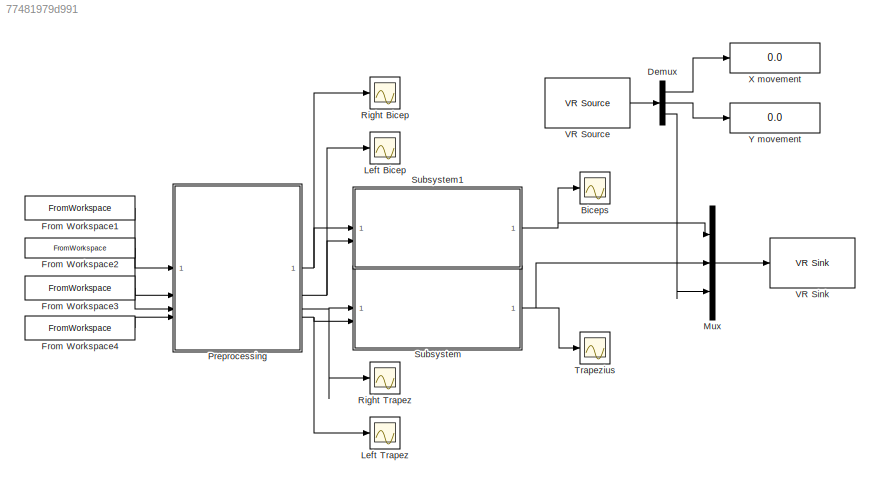
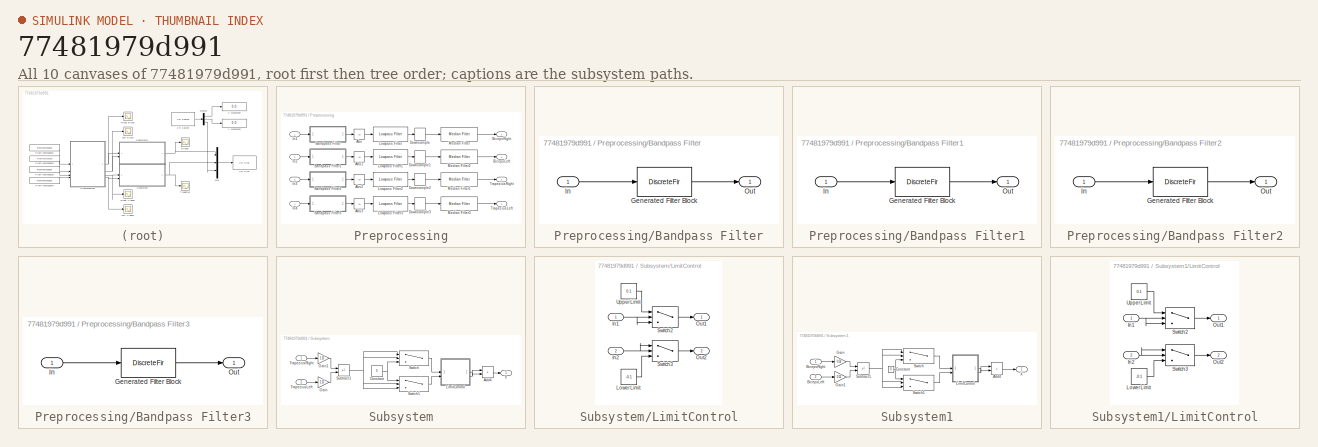
[diagram: thumbnail index - all 10 canvases of the model, root first then tree order]
MODEL slx_77481979d991
KIND model
CONFIG AbsTol = auto
CONFIG EnableMultiTasking = off
CONFIG FixedStep = auto
CONFIG MaxStep = auto
CONFIG MinStep = auto
CONFIG RelTol = 1e-3
CONFIG SampleTimeConstraint = Unconstrained
CONFIG SolverName = VariableStepAuto
CONFIG StartTime = 0.0
CONFIG StopTime = 30.0
BLOCK [Scope] Biceps
  Floating = off
  NumInputPorts = 1
  ScopeSpecificationString = Simulink.scopes.TimeScopeBlockCfg('CurrentConfiguration', extmgr.ConfigurationSet(extmgr.Configuration('Core','General UI',true),extmgr.Configuration('Core','Source UI',true),extmgr.Configuration('Sources','WiredSimulink',true,'DataLoggingVariableName','ScopeData1'),extmgr.Configuration('Visuals','Time Domain',true,'SerializedDisplays',{struct('MinYLimReal','-0.12694','MaxYLimReal','0.12358','YLab...<+1450ch>
BLOCK [Demux] Demux
  Outputs = 3
BLOCK [FromWorkspace] From Workspace1
  OutDataTypeStr = double
  SampleTime = 0.001
  VariableName = [ES2_emg.time, ES2_emg.signals(:,1)]
BLOCK [FromWorkspace] From Workspace2
  OutDataTypeStr = double
  SampleTime = 0.001
  VariableName = [ES2_emg.time, ES2_emg.signals(:,2)]
BLOCK [FromWorkspace] From Workspace3
  OutDataTypeStr = double
  SampleTime = 0.001
  VariableName = [ES2_emg.time, ES2_emg.signals(:,3)]
BLOCK [FromWorkspace] From Workspace4
  OutDataTypeStr = double
  SampleTime = 0.001
  VariableName = [ES2_emg.time, ES2_emg.signals(:,4)]
BLOCK [Scope] Left Bicep
  Floating = off
  NumInputPorts = 1
  ScopeSpecificationString = Simulink.scopes.TimeScopeBlockCfg('CurrentConfiguration', extmgr.ConfigurationSet(extmgr.Configuration('Core','General UI',true),extmgr.Configuration('Core','Source UI',true),extmgr.Configuration('Sources','WiredSimulink',true,'DataLoggingVariableName','ScopeData2'),extmgr.Configuration('Visuals','Time Domain',true),extmgr.Configuration('Tools','Plot Navigation',true),extmgr.Configuration('Tools',...<+40ch>
BLOCK [Scope] Left Trapez
  Floating = off
  NumInputPorts = 1
  ScopeSpecificationString = Simulink.scopes.TimeScopeBlockCfg('CurrentConfiguration', extmgr.ConfigurationSet(extmgr.Configuration('Core','General UI',true),extmgr.Configuration('Core','Source UI',true),extmgr.Configuration('Sources','WiredSimulink',true,'DataLoggingVariableName','ScopeData4'),extmgr.Configuration('Visuals','Time Domain',true),extmgr.Configuration('Tools','Plot Navigation',true),extmgr.Configuration('Tools',...<+40ch>
BLOCK [Mux] Mux
  DisplayOption = bar
  Inputs = 3
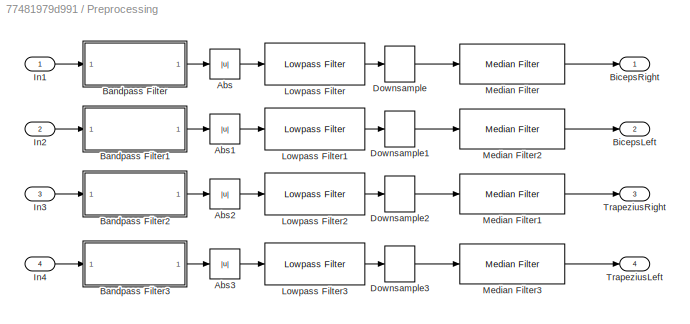
BLOCK [SubSystem] Preprocessing
BLOCK [Abs] Preprocessing/Abs
  SaturateOnIntegerOverflow = off
BLOCK [Abs] Preprocessing/Abs1
  SaturateOnIntegerOverflow = off
BLOCK [Abs] Preprocessing/Abs2
  SaturateOnIntegerOverflow = off
BLOCK [Abs] Preprocessing/Abs3
  SaturateOnIntegerOverflow = off
BLOCK [SubSystem] Preprocessing/Bandpass Filter
  CopyFcn = fdesignblkfcn(gcbh, {'CopyFcn'});
  DialogController = fdesignblkfcn
  InitFcn = fdesignblkfcn(gcbh, {'InitFcn'});
  UserDataPersistent = on
BLOCK [DiscreteFir] Preprocessing/Bandpass Filter/Generated Filter Block
  Coefficients = [8.09984662039171167e-19 6.39138873735445952e-05 -0.000529985360713195602 0.000163049509978640958 -0.00106873656065133355 0.000138454107623771778 -0.00150740219393306354 -0.000146171169312381939 -0.00164491285071874664 -0.000803831165663842096 -0.00127002939103642264 -0.00179475969145176406 -0.000313202715390952153 -0.00280047053638836797 0.00102378750565708626 -0.00320898606072516192 0.0022684712...<+1946ch>  <repeated x4 — deduplicated; at blocks: Generated Filter Block>
  InputPortMap = u0
  InputProcessing = Columns as channels (frame based)
  OutputPortMap = o0
  Tag = BlockMethodSubSystem
BLOCK [Inport] Preprocessing/Bandpass Filter/In
BLOCK [Outport] Preprocessing/Bandpass Filter/Out
  VectorParamsAs1DForOutWhenUnconnected = off
BLOCK [SubSystem] Preprocessing/Bandpass Filter1
  CopyFcn = fdesignblkfcn(gcbh, {'CopyFcn'});
  DialogController = fdesignblkfcn
  InitFcn = fdesignblkfcn(gcbh, {'InitFcn'});
  UserDataPersistent = on
BLOCK [DiscreteFir] Preprocessing/Bandpass Filter1/Generated Filter Block
  InputPortMap = u0
  InputProcessing = Columns as channels (frame based)
  OutputPortMap = o0
  Tag = BlockMethodSubSystem
BLOCK [Inport] Preprocessing/Bandpass Filter1/In
BLOCK [Outport] Preprocessing/Bandpass Filter1/Out
  VectorParamsAs1DForOutWhenUnconnected = off
BLOCK [SubSystem] Preprocessing/Bandpass Filter2
  CopyFcn = fdesignblkfcn(gcbh, {'CopyFcn'});
  DialogController = fdesignblkfcn
  InitFcn = fdesignblkfcn(gcbh, {'InitFcn'});
  UserDataPersistent = on
BLOCK [DiscreteFir] Preprocessing/Bandpass Filter2/Generated Filter Block
  InputPortMap = u0
  InputProcessing = Columns as channels (frame based)
  OutputPortMap = o0
  Tag = BlockMethodSubSystem
BLOCK [Inport] Preprocessing/Bandpass Filter2/In
BLOCK [Outport] Preprocessing/Bandpass Filter2/Out
  VectorParamsAs1DForOutWhenUnconnected = off
BLOCK [SubSystem] Preprocessing/Bandpass Filter3
  CopyFcn = fdesignblkfcn(gcbh, {'CopyFcn'});
  DialogController = fdesignblkfcn
  InitFcn = fdesignblkfcn(gcbh, {'InitFcn'});
  UserDataPersistent = on
BLOCK [DiscreteFir] Preprocessing/Bandpass Filter3/Generated Filter Block
  InputPortMap = u0
  InputProcessing = Columns as channels (frame based)
  OutputPortMap = o0
  Tag = BlockMethodSubSystem
BLOCK [Inport] Preprocessing/Bandpass Filter3/In
BLOCK [Outport] Preprocessing/Bandpass Filter3/Out
  VectorParamsAs1DForOutWhenUnconnected = off
BLOCK [Outport] Preprocessing/BicepsLeft
  Port = 2
BLOCK [Outport] Preprocessing/BicepsRight
BLOCK [DownSample] Preprocessing/Downsample
  InputProcessing = Elements as channels (sample based)
  N = 4
  RateOptions = Allow multirate processing
BLOCK [DownSample] Preprocessing/Downsample1
  InputProcessing = Elements as channels (sample based)
  N = 4
  RateOptions = Allow multirate processing
BLOCK [DownSample] Preprocessing/Downsample2
  InputProcessing = Elements as channels (sample based)
  N = 4
  RateOptions = Allow multirate processing
BLOCK [DownSample] Preprocessing/Downsample3
  InputProcessing = Elements as channels (sample based)
  N = 4
  RateOptions = Allow multirate processing
BLOCK [Inport] Preprocessing/In1
BLOCK [Inport] Preprocessing/In2
  Port = 2
BLOCK [Inport] Preprocessing/In3
  Port = 3
BLOCK [Inport] Preprocessing/In4
  Port = 4
BLOCK [Reference] Preprocessing/Lowpass Filter  REF=dspfdesign/Lowpass Filter
  SourceBlock = dspfdesign/Lowpass Filter
  SourceType = dsp.simulink.LowpassFilter
BLOCK [Reference] Preprocessing/Lowpass Filter1  REF=dspfdesign/Lowpass Filter
  SourceBlock = dspfdesign/Lowpass Filter
  SourceType = dsp.simulink.LowpassFilter
BLOCK [Reference] Preprocessing/Lowpass Filter2  REF=dspfdesign/Lowpass Filter
  SourceBlock = dspfdesign/Lowpass Filter
  SourceType = dsp.simulink.LowpassFilter
BLOCK [Reference] Preprocessing/Lowpass Filter3  REF=dspfdesign/Lowpass Filter
  SourceBlock = dspfdesign/Lowpass Filter
  SourceType = dsp.simulink.LowpassFilter
BLOCK [Reference] Preprocessing/Median Filter  REF=dspstat3/Median
Filter
  LibrarySourceBlock = dspfdesign/Median\nFilter
  SourceBlock = dspstat3/Median\nFilter
  SourceType = dsp.simulink.MedianFilter
BLOCK [Reference] Preprocessing/Median Filter1  REF=dspstat3/Median
Filter
  LibrarySourceBlock = dspfdesign/Median\nFilter
  SourceBlock = dspstat3/Median\nFilter
  SourceType = dsp.simulink.MedianFilter
BLOCK [Reference] Preprocessing/Median Filter2  REF=dspstat3/Median
Filter
  LibrarySourceBlock = dspfdesign/Median\nFilter
  SourceBlock = dspstat3/Median\nFilter
  SourceType = dsp.simulink.MedianFilter
BLOCK [Reference] Preprocessing/Median Filter3  REF=dspstat3/Median
Filter
  LibrarySourceBlock = dspfdesign/Median\nFilter
  SourceBlock = dspstat3/Median\nFilter
  SourceType = dsp.simulink.MedianFilter
BLOCK [Outport] Preprocessing/TrapeziusLeft
  Port = 4
BLOCK [Outport] Preprocessing/TrapeziusRight
  Port = 3
BLOCK [Scope] Right Bicep
  Floating = off
  NumInputPorts = 1
  ScopeSpecificationString = Simulink.scopes.TimeScopeBlockCfg('CurrentConfiguration', extmgr.ConfigurationSet(extmgr.Configuration('Core','General UI',true),extmgr.Configuration('Core','Source UI',true),extmgr.Configuration('Sources','WiredSimulink',true,'DataLoggingVariableName','ScopeData1'),extmgr.Configuration('Visuals','Time Domain',true),extmgr.Configuration('Tools','Plot Navigation',true),extmgr.Configuration('Tools',...<+40ch>
BLOCK [Scope] Right Trapez
  Floating = off
  NumInputPorts = 1
  ScopeSpecificationString = Simulink.scopes.TimeScopeBlockCfg('CurrentConfiguration', extmgr.ConfigurationSet(extmgr.Configuration('Core','General UI',true),extmgr.Configuration('Core','Source UI',true),extmgr.Configuration('Sources','WiredSimulink',true,'DataLoggingVariableName','ScopeData3'),extmgr.Configuration('Visuals','Time Domain',true,'SerializedDisplays',{struct('MinYLimReal','0.00954','MaxYLimReal','0.1271','YLabel...<+1387ch>
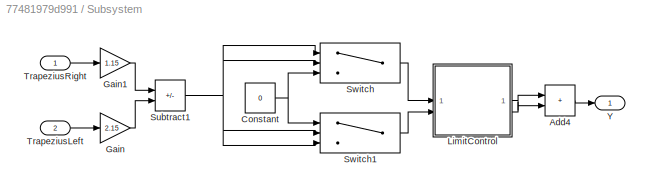
BLOCK [SubSystem] Subsystem
BLOCK [Sum] Subsystem/Add4
  IconShape = rectangular
BLOCK [Constant] Subsystem/Constant
  Value = 0
BLOCK [Gain] Subsystem/Gain
  Gain = 2.15
BLOCK [Gain] Subsystem/Gain1
  Gain = 1.15
BLOCK [SubSystem] Subsystem/LimitControl
BLOCK [Inport] Subsystem/LimitControl/In1
BLOCK [Inport] Subsystem/LimitControl/In2
  Port = 2
BLOCK [Constant] Subsystem/LimitControl/LowerLimit
  Value = -0.1
BLOCK [Outport] Subsystem/LimitControl/Out1
BLOCK [Outport] Subsystem/LimitControl/Out2
  Port = 2
BLOCK [Switch] Subsystem/LimitControl/Switch2
  Criteria = u2 > Threshold
  InputSameDT = off
  SaturateOnIntegerOverflow = off
  Threshold = 0.074
BLOCK [Switch] Subsystem/LimitControl/Switch3
  Criteria = u2 > Threshold
  InputSameDT = off
  SaturateOnIntegerOverflow = off
  Threshold = -0.1
BLOCK [Constant] Subsystem/LimitControl/UpperLimit
  Value = 0.1
BLOCK [Sum] Subsystem/Subtract1
  IconShape = rectangular
  Inputs = +-
BLOCK [Switch] Subsystem/Switch
  Criteria = u2 > Threshold
  InputSameDT = off
  SaturateOnIntegerOverflow = off
  Threshold = 0.05
BLOCK [Switch] Subsystem/Switch1
  Criteria = u2 > Threshold
  InputSameDT = off
  SaturateOnIntegerOverflow = off
  Threshold = -0.015
BLOCK [Inport] Subsystem/TrapeziusLeft
  Port = 2
BLOCK [Inport] Subsystem/TrapeziusRight
BLOCK [Outport] Subsystem/Y
BLOCK [SubSystem] Subsystem1
BLOCK [Sum] Subsystem1/Add4
  IconShape = rectangular
BLOCK [Inport] Subsystem1/BicepsLeft
  Port = 2
BLOCK [Inport] Subsystem1/BicepsRight
BLOCK [Constant] Subsystem1/Constant
  Value = 0
BLOCK [Gain] Subsystem1/Gain
  Gain = 0.59
BLOCK [Gain] Subsystem1/Gain1
  Gain = 0.52
BLOCK [SubSystem] Subsystem1/LimitControl
BLOCK [Inport] Subsystem1/LimitControl/In1
BLOCK [Inport] Subsystem1/LimitControl/In2
  Port = 2
BLOCK [Constant] Subsystem1/LimitControl/LowerLimit
  Value = -0.1
BLOCK [Outport] Subsystem1/LimitControl/Out1
BLOCK [Outport] Subsystem1/LimitControl/Out2
  Port = 2
BLOCK [Switch] Subsystem1/LimitControl/Switch2
  Criteria = u2 > Threshold
  InputSameDT = off
  SaturateOnIntegerOverflow = off
  Threshold = 0.098
BLOCK [Switch] Subsystem1/LimitControl/Switch3
  Criteria = u2 > Threshold
  InputSameDT = off
  SaturateOnIntegerOverflow = off
  Threshold = -0.0975
BLOCK [Constant] Subsystem1/LimitControl/UpperLimit
  Value = 0.1
BLOCK [Sum] Subsystem1/Subtract1
  IconShape = rectangular
  Inputs = +-
BLOCK [Switch] Subsystem1/Switch
  Criteria = u2 > Threshold
  InputSameDT = off
  SaturateOnIntegerOverflow = off
  Threshold = 0.01
BLOCK [Switch] Subsystem1/Switch1
  Criteria = u2 > Threshold
  InputSameDT = off
  SaturateOnIntegerOverflow = off
  Threshold = -0.01
BLOCK [Outport] Subsystem1/X
BLOCK [Scope] Trapezius
  Floating = off
  NumInputPorts = 1
  ScopeSpecificationString = Simulink.scopes.TimeScopeBlockCfg('CurrentConfiguration', extmgr.ConfigurationSet(extmgr.Configuration('Core','General UI',true),extmgr.Configuration('Core','Source UI',true),extmgr.Configuration('Sources','WiredSimulink',true,'DataLoggingVariableName','ScopeData2'),extmgr.Configuration('Visuals','Time Domain',true,'SerializedDisplays',{struct('MinYLimReal','-0.125','MaxYLimReal','0.125','YLabelRe...<+1465ch>
BLOCK [Reference] VR Sink  REF=vrlib/VR Sink
  InstantiateOnLoad = on
  SourceBlock = vrlib/VR Sink
  SourceType = Virtual Reality Sink
BLOCK [Reference] VR Source  REF=vrlib/VR Source
  InstantiateOnLoad = on
  SourceBlock = vrlib/VR Source
  SourceType = Virtual Reality Source
BLOCK [Display] X movement
  Decimation = 1
BLOCK [Display] Y movement
  Decimation = 1
LINE Demux:1 -> X movement:1
LINE Demux:2 -> Y movement:1
LINE Demux:3 -> Mux:3
LINE From Workspace1:1 -> Preprocessing:1
LINE From Workspace2:1 -> Preprocessing:2
LINE From Workspace3:1 -> Preprocessing:3
LINE From Workspace4:1 -> Preprocessing:4
LINE Mux:1 -> VR Sink:1
LINE Preprocessing/Abs1:1 -> Preprocessing/Lowpass Filter1:1
LINE Preprocessing/Abs2:1 -> Preprocessing/Lowpass Filter2:1
LINE Preprocessing/Abs3:1 -> Preprocessing/Lowpass Filter3:1
LINE Preprocessing/Abs:1 -> Preprocessing/Lowpass Filter:1
LINE Preprocessing/Bandpass Filter1:1 -> Preprocessing/Abs1:1
LINE Preprocessing/Bandpass Filter2:1 -> Preprocessing/Abs2:1
LINE Preprocessing/Bandpass Filter3:1 -> Preprocessing/Abs3:1
LINE Preprocessing/Bandpass Filter:1 -> Preprocessing/Abs:1
LINE Preprocessing/Downsample1:1 -> Preprocessing/Median Filter2:1
LINE Preprocessing/Downsample2:1 -> Preprocessing/Median Filter1:1
LINE Preprocessing/Downsample3:1 -> Preprocessing/Median Filter3:1
LINE Preprocessing/Downsample:1 -> Preprocessing/Median Filter:1
LINE Preprocessing/In1:1 -> Preprocessing/Bandpass Filter:1
LINE Preprocessing/In2:1 -> Preprocessing/Bandpass Filter1:1
LINE Preprocessing/In3:1 -> Preprocessing/Bandpass Filter2:1
LINE Preprocessing/In4:1 -> Preprocessing/Bandpass Filter3:1
LINE Preprocessing/Lowpass Filter1:1 -> Preprocessing/Downsample1:1
LINE Preprocessing/Lowpass Filter2:1 -> Preprocessing/Downsample2:1
LINE Preprocessing/Lowpass Filter3:1 -> Preprocessing/Downsample3:1
LINE Preprocessing/Lowpass Filter:1 -> Preprocessing/Downsample:1
LINE Preprocessing/Median Filter1:1 -> Preprocessing/TrapeziusRight:1
LINE Preprocessing/Median Filter2:1 -> Preprocessing/BicepsLeft:1
LINE Preprocessing/Median Filter3:1 -> Preprocessing/TrapeziusLeft:1
LINE Preprocessing/Median Filter:1 -> Preprocessing/BicepsRight:1
NET Preprocessing:1 -> Right Bicep:1, Subsystem1:1
NET Preprocessing:2 -> Left Bicep:1, Subsystem1:2
NET Preprocessing:3 -> Right Trapez:1, Subsystem:1
NET Preprocessing:4 -> Left Trapez:1, Subsystem:2
LINE Subsystem/Add4:1 -> Subsystem/Y:1
NET Subsystem/Constant:1 -> Subsystem/Switch1:1, Subsystem/Switch:3
LINE Subsystem/Gain1:1 -> Subsystem/Subtract1:1
LINE Subsystem/Gain:1 -> Subsystem/Subtract1:2
NET Subsystem/LimitControl/In1:1 -> Subsystem/LimitControl/Switch2:2, Subsystem/LimitControl/Switch2:3
NET Subsystem/LimitControl/In2:1 -> Subsystem/LimitControl/Switch3:1, Subsystem/LimitControl/Switch3:2
LINE Subsystem/LimitControl/LowerLimit:1 -> Subsystem/LimitControl/Switch3:3
LINE Subsystem/LimitControl/Switch2:1 -> Subsystem/LimitControl/Out1:1
LINE Subsystem/LimitControl/Switch3:1 -> Subsystem/LimitControl/Out2:1
LINE Subsystem/LimitControl/UpperLimit:1 -> Subsystem/LimitControl/Switch2:1
LINE Subsystem/LimitControl:1 -> Subsystem/Add4:1
LINE Subsystem/LimitControl:2 -> Subsystem/Add4:2
NET Subsystem/Subtract1:1 -> Subsystem/Switch1:2, Subsystem/Switch1:3, Subsystem/Switch:1, Subsystem/Switch:2
LINE Subsystem/Switch1:1 -> Subsystem/LimitControl:2
LINE Subsystem/Switch:1 -> Subsystem/LimitControl:1
LINE Subsystem/TrapeziusLeft:1 -> Subsystem/Gain:1
LINE Subsystem/TrapeziusRight:1 -> Subsystem/Gain1:1
LINE Subsystem1/Add4:1 -> Subsystem1/X:1
LINE Subsystem1/BicepsLeft:1 -> Subsystem1/Gain1:1
LINE Subsystem1/BicepsRight:1 -> Subsystem1/Gain:1
NET Subsystem1/Constant:1 -> Subsystem1/Switch1:1, Subsystem1/Switch:3
LINE Subsystem1/Gain1:1 -> Subsystem1/Subtract1:2
LINE Subsystem1/Gain:1 -> Subsystem1/Subtract1:1
NET Subsystem1/LimitControl/In1:1 -> Subsystem1/LimitControl/Switch2:2, Subsystem1/LimitControl/Switch2:3
NET Subsystem1/LimitControl/In2:1 -> Subsystem1/LimitControl/Switch3:1, Subsystem1/LimitControl/Switch3:2
LINE Subsystem1/LimitControl/LowerLimit:1 -> Subsystem1/LimitControl/Switch3:3
LINE Subsystem1/LimitControl/Switch2:1 -> Subsystem1/LimitControl/Out1:1
LINE Subsystem1/LimitControl/Switch3:1 -> Subsystem1/LimitControl/Out2:1
LINE Subsystem1/LimitControl/UpperLimit:1 -> Subsystem1/LimitControl/Switch2:1
LINE Subsystem1/LimitControl:1 -> Subsystem1/Add4:1
LINE Subsystem1/LimitControl:2 -> Subsystem1/Add4:2
NET Subsystem1/Subtract1:1 -> Subsystem1/Switch1:2, Subsystem1/Switch1:3, Subsystem1/Switch:1, Subsystem1/Switch:2
LINE Subsystem1/Switch1:1 -> Subsystem1/LimitControl:2
LINE Subsystem1/Switch:1 -> Subsystem1/LimitControl:1
NET Subsystem1:1 -> Biceps:1, Mux:1
NET Subsystem:1 -> Mux:2, Trapezius:1
LINE VR Source:1 -> Demux:1
note: NET lines group one-source signal fan-out (src -> all destinations, sorted); 1:1 wires keep LINE
